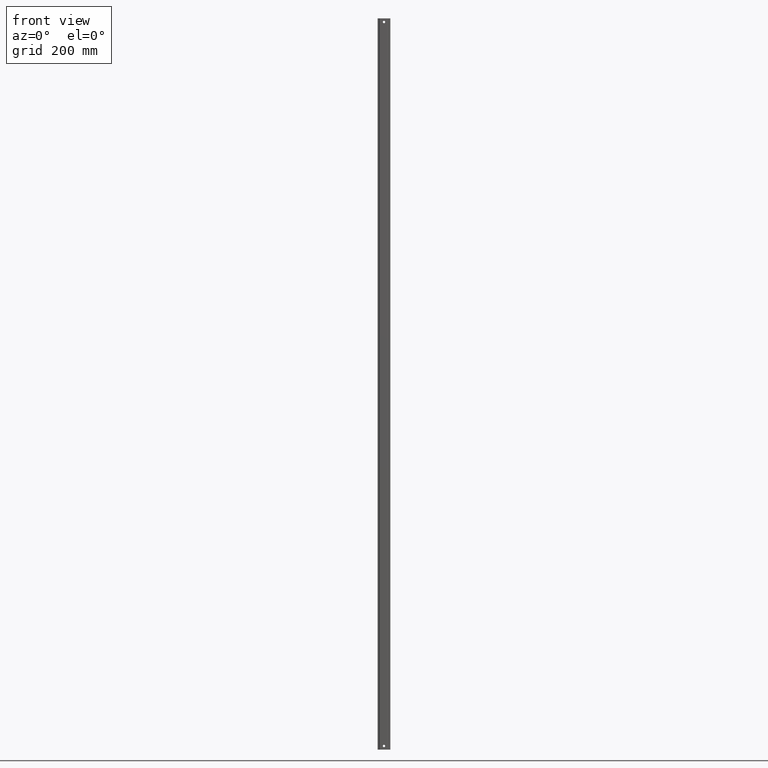
[diagram: clean part render]
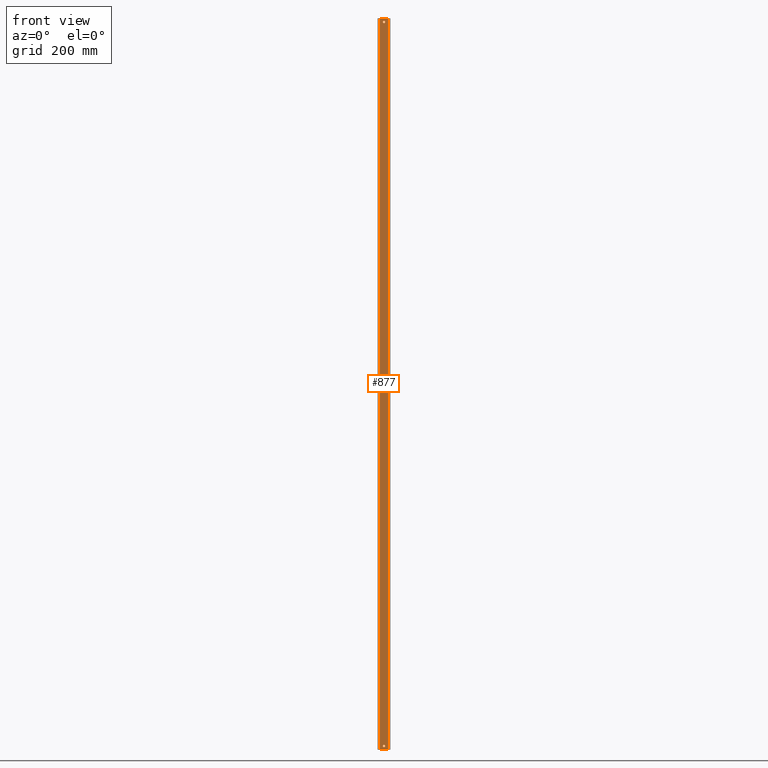
[diagram: same view with one face highlighted and labeled with its STEP entity id]
A machine part, front view. The second image highlights one B-rep face of the part: STEP entity #877.
In plain terms, the highlighted planar face has unit normal (0, 1, 0).
Its self-contained STEP definition (entity closure, byte-faithful):
#12 = CARTESIAN_POINT ( 'NONE',  ( 0.0000000000000000000, 0.0000000000000000000, 2000.000000000000000 ) ) ;
#20 = LINE ( 'NONE', #12, #532 ) ;
#44 = DIRECTION ( 'NONE',  ( -0.0000000000000000000, -0.0000000000000000000, -1.000000000000000000 ) ) ;
#57 = DIRECTION ( 'NONE',  ( 0.0000000000000000000, 1.000000000000000000, 0.0000000000000000000 ) ) ;
#63 = DIRECTION ( 'NONE',  ( 0.0000000000000000000, 0.0000000000000000000, 1.000000000000000000 ) ) ;
#87 = CARTESIAN_POINT ( 'NONE',  ( 10.80000000000001500, 0.0000000000000000000, 1990.000000000000000 ) ) ;
#92 = LINE ( 'NONE', #93, #803 ) ;
#93 = CARTESIAN_POINT ( 'NONE',  ( 21.60000000000014700, 0.0000000000000000000, 2000.000000000000000 ) ) ;
#94 = DIRECTION ( 'NONE',  ( -0.0000000000000000000, -0.0000000000000000000, -1.000000000000000000 ) ) ;
#134 = DIRECTION ( 'NONE',  ( 0.0000000000000000000, 0.0000000000000000000, 1.000000000000000000 ) ) ;
#140 = CARTESIAN_POINT ( 'NONE',  ( 10.80000000000001500, 0.0000000000000000000, 1990.000000000000000 ) ) ;
#164 = DIRECTION ( 'NONE',  ( 0.0000000000000000000, 1.000000000000000000, 0.0000000000000000000 ) ) ;
#224 = CARTESIAN_POINT ( 'NONE',  ( 0.0000000000000000000, 0.0000000000000000000, 2000.000000000000000 ) ) ;
#225 = CARTESIAN_POINT ( 'NONE',  ( 21.60000000000014700, 0.0000000000000000000, 0.0000000000000000000 ) ) ;
#234 = CARTESIAN_POINT ( 'NONE',  ( 10.80000000000001500, 0.0000000000000000000, 6.750000000000008000 ) ) ;
#240 = CARTESIAN_POINT ( 'NONE',  ( 10.80000000000001500, 0.0000000000000000000, 1986.750000000000000 ) ) ;
#246 = CARTESIAN_POINT ( 'NONE',  ( 10.80000000000001500, 0.0000000000000000000, 1993.250000000000000 ) ) ;
#261 = CARTESIAN_POINT ( 'NONE',  ( 10.80000000000001500, 0.0000000000000000000, 13.25000000000001100 ) ) ;
#263 = CARTESIAN_POINT ( 'NONE',  ( 21.60000000000014700, 0.0000000000000000000, 2000.000000000000000 ) ) ;
#374 = FACE_BOUND ( 'NONE', #743, .T. ) ;
#378 = DIRECTION ( 'NONE',  ( 0.0000000000000000000, 1.000000000000000000, 0.0000000000000000000 ) ) ;
#379 = DIRECTION ( 'NONE',  ( 0.0000000000000000000, 0.0000000000000000000, 1.000000000000000000 ) ) ;
#387 = PLANE ( 'NONE',  #471 ) ;
#394 = CARTESIAN_POINT ( 'NONE',  ( 10.49461781091140900, 0.0000000000000000000, 2000.000000000000000 ) ) ;
#399 = DIRECTION ( 'NONE',  ( 0.0000000000000000000, -0.0000000000000000000, 1.000000000000000000 ) ) ;
#403 = FACE_BOUND ( 'NONE', #717, .T. ) ;
#418 = CARTESIAN_POINT ( 'NONE',  ( 10.80000000000001500, 0.0000000000000000000, 10.00000000000000900 ) ) ;
#419 = FACE_OUTER_BOUND ( 'NONE', #728, .T. ) ;
#421 = DIRECTION ( 'NONE',  ( 0.0000000000000000000, 1.000000000000000000, 0.0000000000000000000 ) ) ;
#423 = LINE ( 'NONE', #437, #538 ) ;
#429 = LINE ( 'NONE', #430, #535 ) ;
#430 = CARTESIAN_POINT ( 'NONE',  ( 10.49461781091140900, 0.0000000000000000000, 2000.000000000000000 ) ) ;
#431 = DIRECTION ( 'NONE',  ( 1.000000000000000000, 0.0000000000000000000, 0.0000000000000000000 ) ) ;
#437 = CARTESIAN_POINT ( 'NONE',  ( 10.49461781091140900, 0.0000000000000000000, 0.0000000000000000000 ) ) ;
#438 = CARTESIAN_POINT ( 'NONE',  ( 10.80000000000001500, 0.0000000000000000000, 10.00000000000000900 ) ) ;
#441 = DIRECTION ( 'NONE',  ( 0.0000000000000000000, 1.000000000000000000, 0.0000000000000000000 ) ) ;
#448 = DIRECTION ( 'NONE',  ( 0.0000000000000000000, 0.0000000000000000000, 1.000000000000000000 ) ) ;
#452 = DIRECTION ( 'NONE',  ( 1.000000000000000000, 0.0000000000000000000, 0.0000000000000000000 ) ) ;
#471 = AXIS2_PLACEMENT_3D ( 'NONE', #394, #421, #399 ) ;
#472 = AXIS2_PLACEMENT_3D ( 'NONE', #418, #378, #379 ) ;
#494 = CIRCLE ( 'NONE', #472, 3.250000000000001300 ) ;
#532 = VECTOR ( 'NONE', #44, 1000.000000000000000 ) ;
#535 = VECTOR ( 'NONE', #452, 1000.000000000000000 ) ;
#537 = CIRCLE ( 'NONE', #539, 3.250000000000001300 ) ;
#538 = VECTOR ( 'NONE', #431, 1000.000000000000000 ) ;
#539 = AXIS2_PLACEMENT_3D ( 'NONE', #438, #441, #448 ) ;
#592 = ORIENTED_EDGE ( 'NONE', *, *, #937, .T. ) ;
#597 = VERTEX_POINT ( 'NONE', #969 ) ;
#602 = VERTEX_POINT ( 'NONE', #225 ) ;
#607 = ORIENTED_EDGE ( 'NONE', *, *, #925, .F. ) ;
#610 = ORIENTED_EDGE ( 'NONE', *, *, #881, .T. ) ;
#611 = VERTEX_POINT ( 'NONE', #224 ) ;
#612 = ORIENTED_EDGE ( 'NONE', *, *, #879, .T. ) ;
#625 = ORIENTED_EDGE ( 'NONE', *, *, #899, .T. ) ;
#626 = ORIENTED_EDGE ( 'NONE', *, *, #884, .F. ) ;
#635 = ORIENTED_EDGE ( 'NONE', *, *, #882, .T. ) ;
#640 = VERTEX_POINT ( 'NONE', #263 ) ;
#643 = ORIENTED_EDGE ( 'NONE', *, *, #908, .T. ) ;
#689 = VERTEX_POINT ( 'NONE', #240 ) ;
#709 = VERTEX_POINT ( 'NONE', #246 ) ;
#717 = EDGE_LOOP ( 'NONE', ( #612, #610 ) ) ;
#728 = EDGE_LOOP ( 'NONE', ( #635, #607, #626, #625 ) ) ;
#743 = EDGE_LOOP ( 'NONE', ( #643, #592 ) ) ;
#755 = VERTEX_POINT ( 'NONE', #261 ) ;
#756 = VERTEX_POINT ( 'NONE', #234 ) ;
#782 = AXIS2_PLACEMENT_3D ( 'NONE', #140, #164, #134 ) ;
#802 = CIRCLE ( 'NONE', #782, 3.249999999999975100 ) ;
#803 = VECTOR ( 'NONE', #94, 1000.000000000000000 ) ;
#877 = ADVANCED_FACE ( 'NONE', ( #403, #374, #419 ), #387, .F. ) ;
#879 = EDGE_CURVE ( 'NONE', #755, #756, #494, .T. ) ;
#881 = EDGE_CURVE ( 'NONE', #756, #755, #537, .T. ) ;
#882 = EDGE_CURVE ( 'NONE', #597, #602, #423, .T. ) ;
#884 = EDGE_CURVE ( 'NONE', #611, #640, #429, .T. ) ;
#899 = EDGE_CURVE ( 'NONE', #611, #597, #20, .T. ) ;
#908 = EDGE_CURVE ( 'NONE', #709, #689, #955, .T. ) ;
#925 = EDGE_CURVE ( 'NONE', #640, #602, #92, .T. ) ;
#937 = EDGE_CURVE ( 'NONE', #689, #709, #802, .T. ) ;
#943 = AXIS2_PLACEMENT_3D ( 'NONE', #87, #57, #63 ) ;
#955 = CIRCLE ( 'NONE', #943, 3.249999999999975100 ) ;
#969 = CARTESIAN_POINT ( 'NONE',  ( 0.0000000000000000000, 0.0000000000000000000, 0.0000000000000000000 ) ) ;